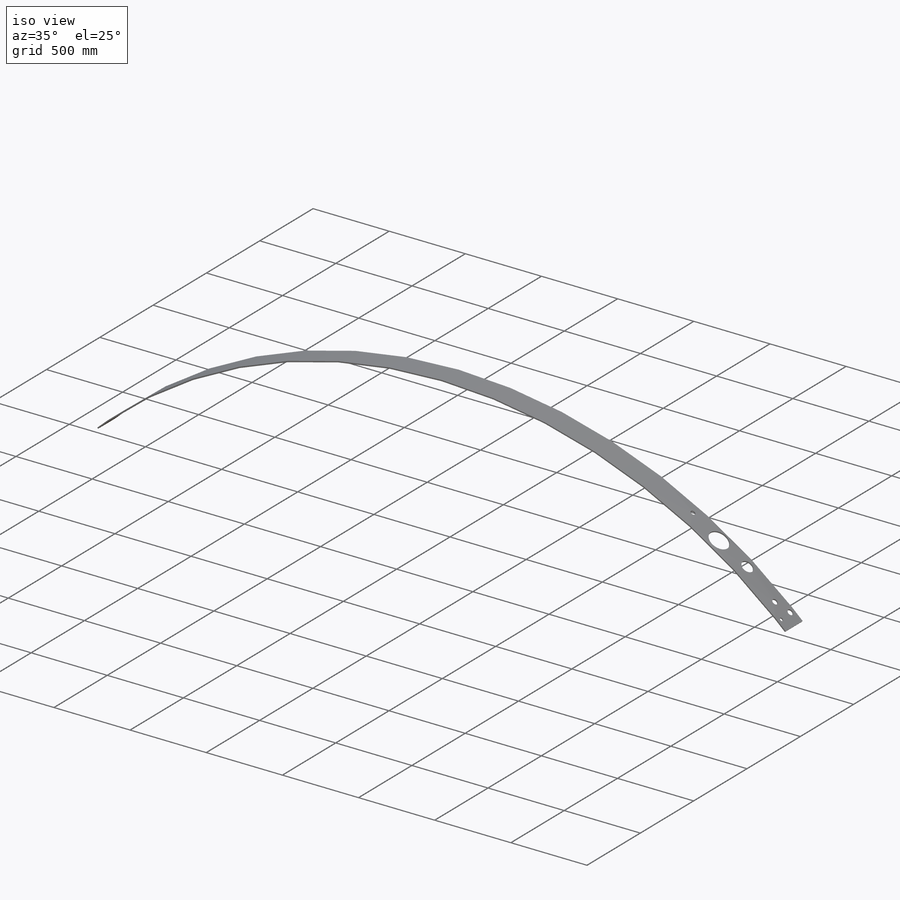
[diagram: iso view]
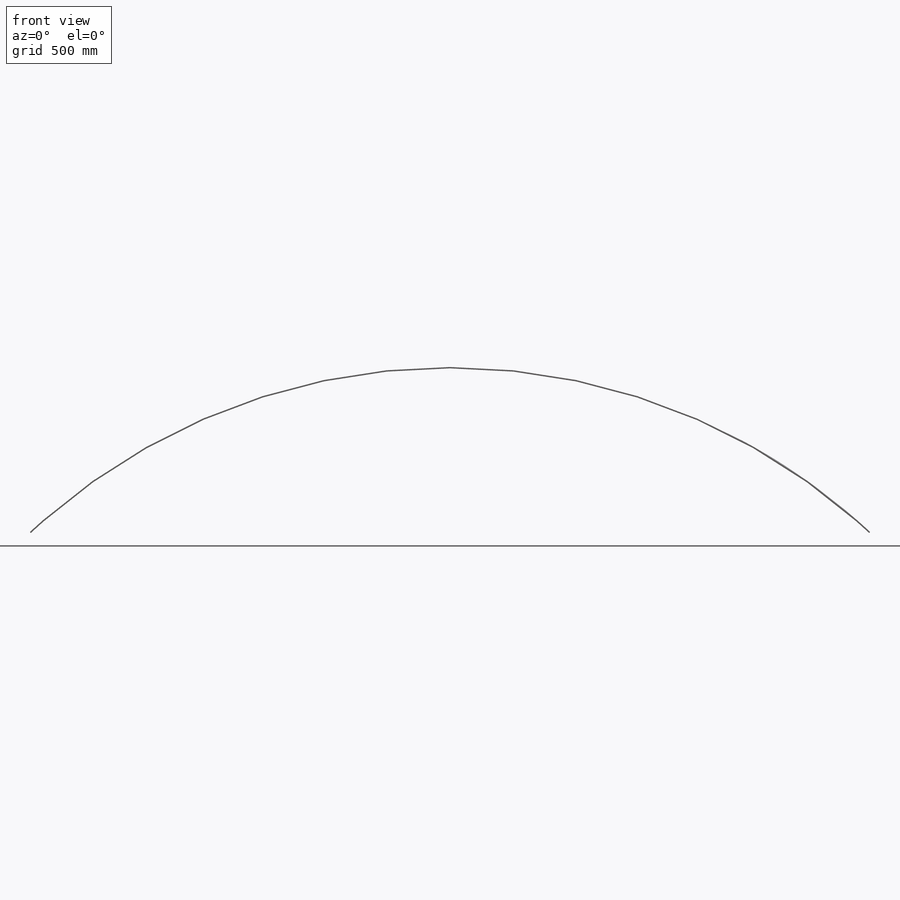
[diagram: front view]
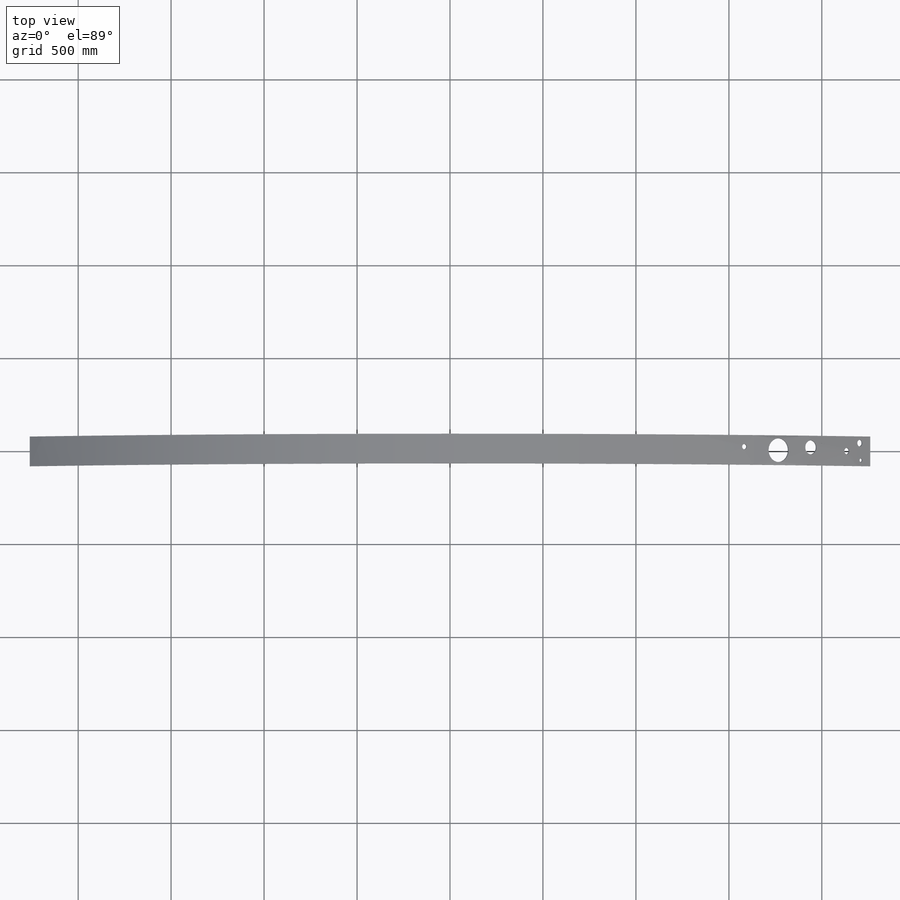
[diagram: top view]
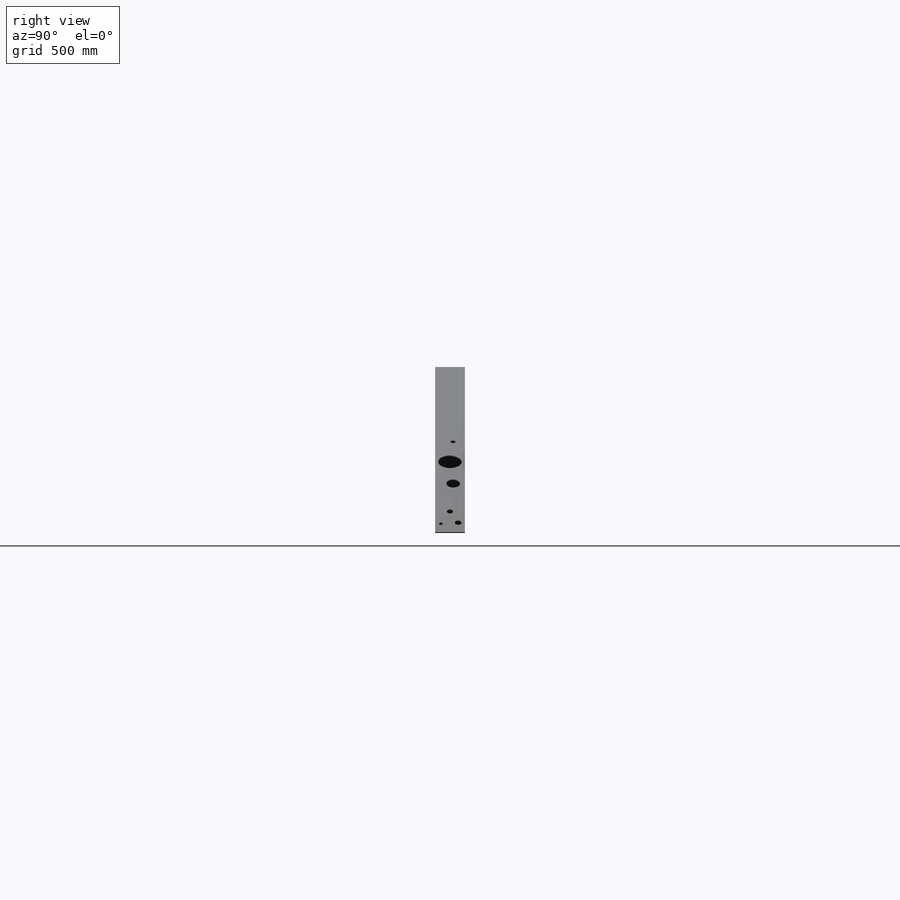
[diagram: right view]
SOLIDWORKS PART (.sldprt)
format: sldprt  version: not decoded by parser v0  size: 1,340,928 bytes
history: native  units: mm
features: sketch x10, plane x4, sheet_metal_op x3, material x1, cut_extrude x1 + 2 further entries (+10 scaffold rows collapsed; 1 parser-record rows omitted)
feature tree (32):
  scaffold x10  (default folders/planes/origin — collapsed)
  material  "Material <nicht angegeben>"
  plane  "Ebene vorne"
  plane  "Ebene oben"
  plane  "Ebene rechts"
  sketch  "Skizze1"  dims[D1=3321.0mm D2=4520.0mm D3=4520.0mm]
  plane  "Ebene1"
  sketch  "Skizze11"  dims[r1=10.5mm r2=5.5mm b=65.0mm h=160.0mm s=7.5mm c=32.5mm t=10.5mm winkel=2.86deg]
  sketch  "Skizze12"  dims[c1.D1=0.01mm c2.D1=0.7366mm c2.D2=0.5 c2.D3=~0.160428deg]
  sheet_metal_op  "Basis-Blech1"
  parser-record x1  (decoder bookkeeping rows leaked as tree rows — omitted from the tree; the rows remain in map.json)
  sketch  "Skizze17"  dims[D1=~28.364235mm]
  cut_extrude  "Schnitt-Linear austragen1"  Depth=0 Skizzen-Transformation3=0
  sketch  "Biegung-Linien1"
  sketch  "Rahmen1"
  sheet_metal_op  "Blech5"
  "Abwicklung5"
  sketch  "Biegung-Linien2"
  sketch  "Rahmen2"  dims[Skizzen-Transformation1=0.0]
  sheet_metal_op  "Blech6"
  sketch  "Biegung-Linien2"
  sketch  "Rahmen2"  dims[Skizzen-Transformation1=0.0]
  "Abwickeln-<Basisbiegung1>1"
decode coverage: 7 of 14 modeling features carry decoded parameters; 2 rows unclassified (native names shown)
note: ~ marks probable driven/reference dimensions
note: suppression state not decoded; provenance and decode notes live in map.json
